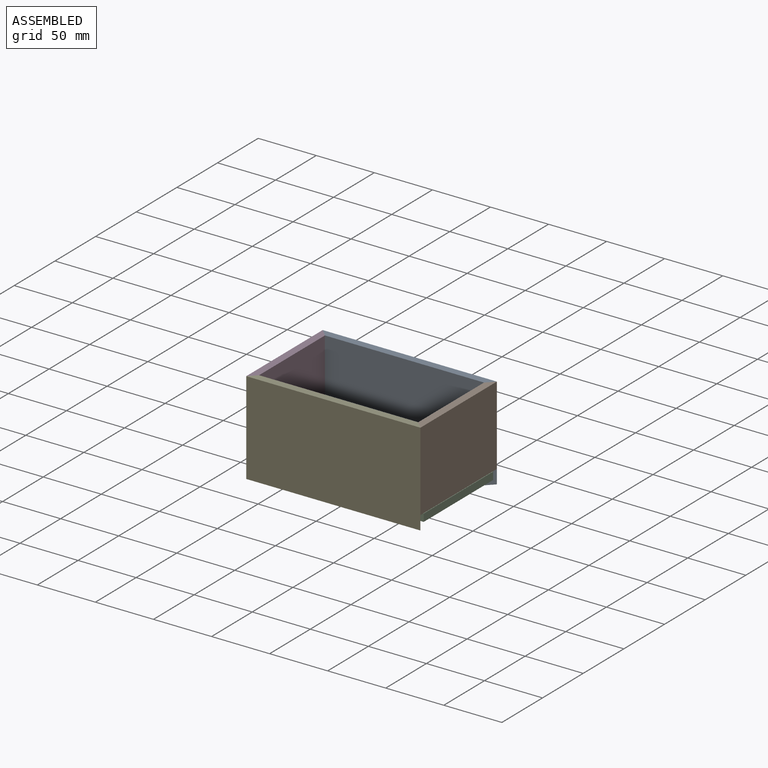
[diagram: assembled view]
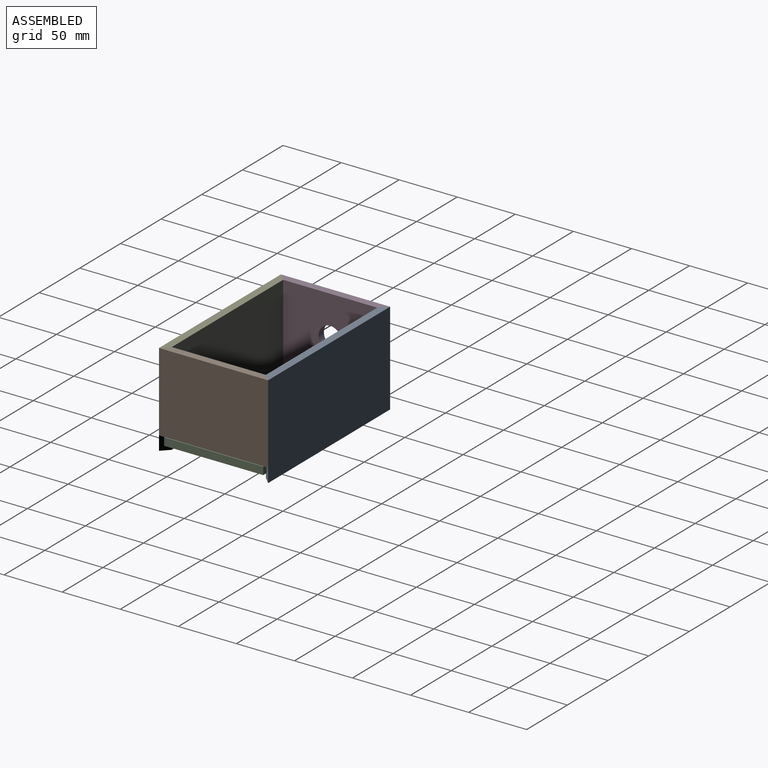
[diagram: assembled view, second angle]
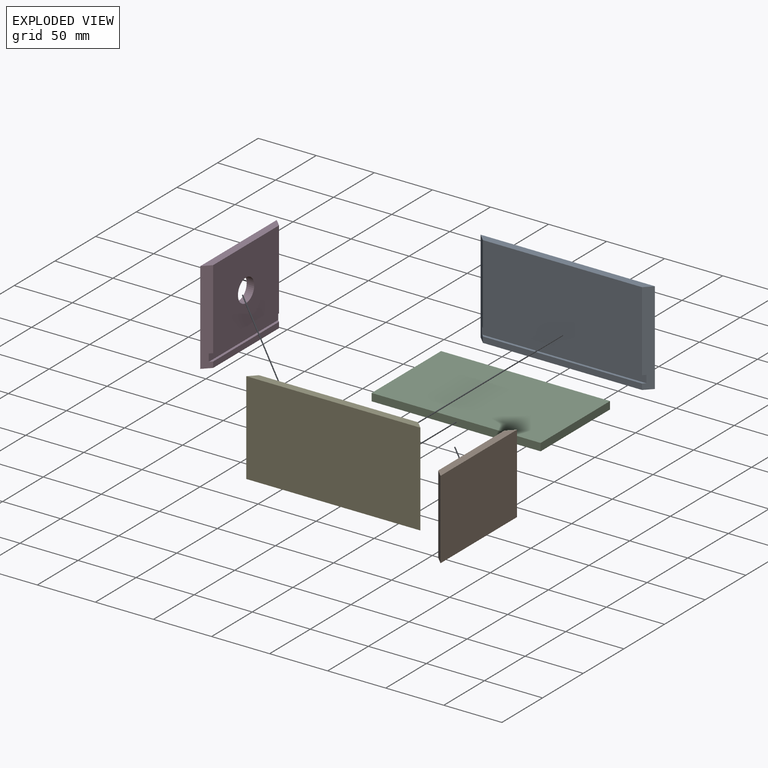
[diagram: exploded view]
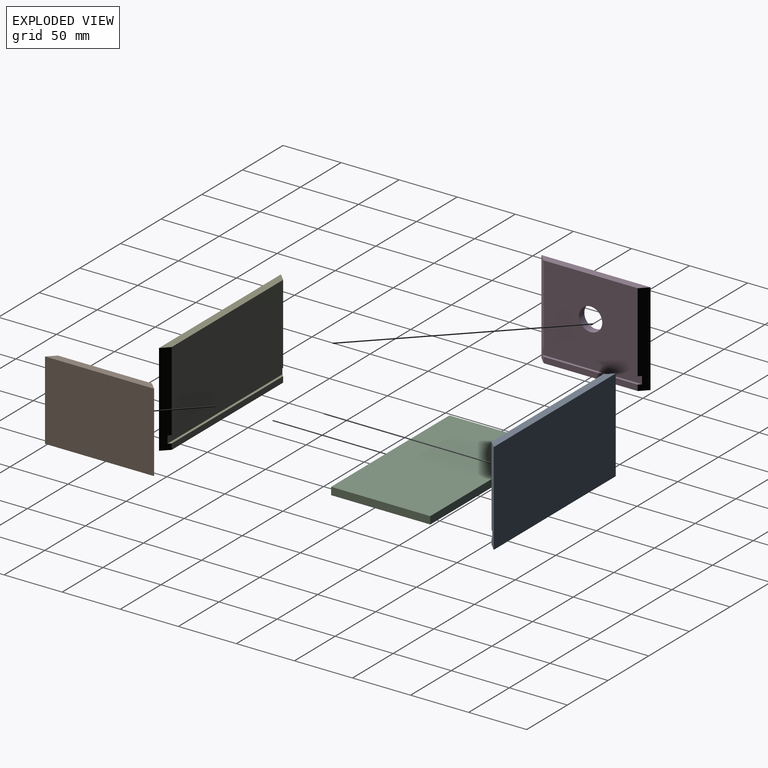
[diagram: exploded view, second angle]
ASSEMBLY  parts=5 mates=4
PART A: 10 faces, bbox 150x6.5x80 mm
  f0: plane 137x5mm, normal (0,1,0), area 685mm2, adj f1,f5,f8,f9
  f1: plane 150x6.5mm, normal (0,0,-1), area 932.8mm2, adj f0,f3,f8,f9
  f2: plane 150x6.5mm, normal (0,0,1), area 932.7mm2, adj f3,f4,f8,f9
  f3: plane 150x80mm, normal (0,-1,0), area 12000mm2, adj f1,f2,f8,f9
  f4: plane 137x68.5mm, normal (0,1,0), area 9384.5mm2, adj f2,f7,f8,f9
  f5: plane 141.4x2.2mm, normal (0,0,1), area 306.2mm2, adj f0,f6,f8,f9
  f6: plane 141.4x6.5mm, normal (0,1,0), area 919.1mm2, adj f5,f7,f8,f9
  f7: plane 141.4x2.2mm, normal (0,0,-1), area 306.2mm2, adj f4,f6,f8,f9
  f8: plane 80x6.5mm, normal (-0.71,0.71,0), area 715.2mm2, adj f0,f1,f2,f3,f4,f5,f6,f7
  f9: plane 80x6.5mm, normal (0.71,0.71,0), area 715.2mm2, adj f0,f1,f2,f3,f4,f5,f6,f7
PART B: 6 faces, bbox 6.5x94x68 mm
  f0: plane 94x6.5mm, normal (0,0,-1), area 568.8mm2, adj f2,f3,f4,f5
  f1: plane 94x6.5mm, normal (0,0,1), area 568.7mm2, adj f2,f3,f4,f5
  f2: plane 94x68mm, normal (1,0,0), area 6392mm2, adj f0,f1,f4,f5
  f3: plane 81x68mm, normal (-1,0,0), area 5508mm2, adj f0,f1,f4,f5
  f4: plane 68x6.5mm, normal (-0.71,0.71,0), area 625.1mm2, adj f0,f1,f2,f3
  f5: plane 68x6.5mm, normal (-0.71,-0.71,0), area 625.1mm2, adj f0,f1,f2,f3
PART C: 6 faces, bbox 145.5x85.4x6.5 mm
  f0: plane 145.5x6.5mm, normal (0,1,0), area 945.8mm2, adj f1,f3,f4,f5
  f1: plane 85.4x6.5mm, normal (-1,0,0), area 555.1mm2, adj f0,f2,f4,f5
  f2: plane 145.5x6.5mm, normal (0,-1,0), area 945.8mm2, adj f1,f3,f4,f5
  f3: plane 85.4x6.5mm, normal (1,0,0), area 555.1mm2, adj f0,f2,f4,f5
  f4: plane 145.5x85.4mm, normal (0,0,1), area 12425.7mm2, adj f0,f1,f2,f3
  f5: plane 145.5x85.4mm, normal (0,0,-1), area 12425.7mm2, adj f0,f1,f2,f3
PART D: 11 faces, bbox 6.5x94x80 mm
  f0: plane 81x5mm, normal (1,0,0), area 405mm2, adj f1,f6,f9,f10
  f1: plane 94x6.5mm, normal (0,0,-1), area 568.7mm2, adj f0,f5,f9,f10
  f2: plane 94x6.5mm, normal (0,0,1), area 568.7mm2, adj f4,f5,f9,f10
  f3: cylinder r=10mm len=20mm, axis (-1,0,0), area 408.4mm2, adj f4,f5
  f4: plane 81x68.5mm, normal (1,0,0), area 5234.3mm2, adj f2,f3,f7,f9,f10
  f5: plane 94x80mm, normal (-1,0,0), area 7205.8mm2, adj f1,f2,f3,f9,f10
  f6: plane 85.4x2.2mm, normal (0,0,1), area 183mm2, adj f0,f8,f9,f10
  f7: plane 85.4x2.2mm, normal (0,0,-1), area 183mm2, adj f4,f8,f9,f10
  f8: plane 85.4x6.5mm, normal (1,0,0), area 555.1mm2, adj f6,f7,f9,f10
  f9: plane 80x6.5mm, normal (0.71,0.71,0), area 715.2mm2, adj f0,f1,f2,f4,f5,f6,f7,f8
  f10: plane 80x6.5mm, normal (0.71,-0.71,0), area 715.2mm2, adj f0,f1,f2,f4,f5,f6,f7,f8
PART E: same geometry as A
PLACE A rot(axis=(0,0,1),180deg) t=(72.83,11.78,-20.06)mm
PLACE B t=(66.33,-75.72,-8.06)mm
PLACE C t=(-72.87,13.98,-15.06)mm
PLACE D t=(-77.17,18.28,-20.06)mm
PLACE E t=(-77.17,-69.22,-20.06)mm
MATE fastened E.f8 <-> D.f10  axis (-0.71,0.71,0) through (-73.98,-72.53,20.83)mm
MATE fastened B.f4 <-> A.f8  axis (-0.71,0.71,0) through (69.58,15.03,59.94)mm
MATE fastened C.f1 <-> D.f8  axis (-1,0,0) through (-72.87,-28.72,-11.81)mm
MATE fastened A.f9 <-> D.f9  axis (-0.71,-0.71,0) through (-73.98,15.09,20.83)mm
